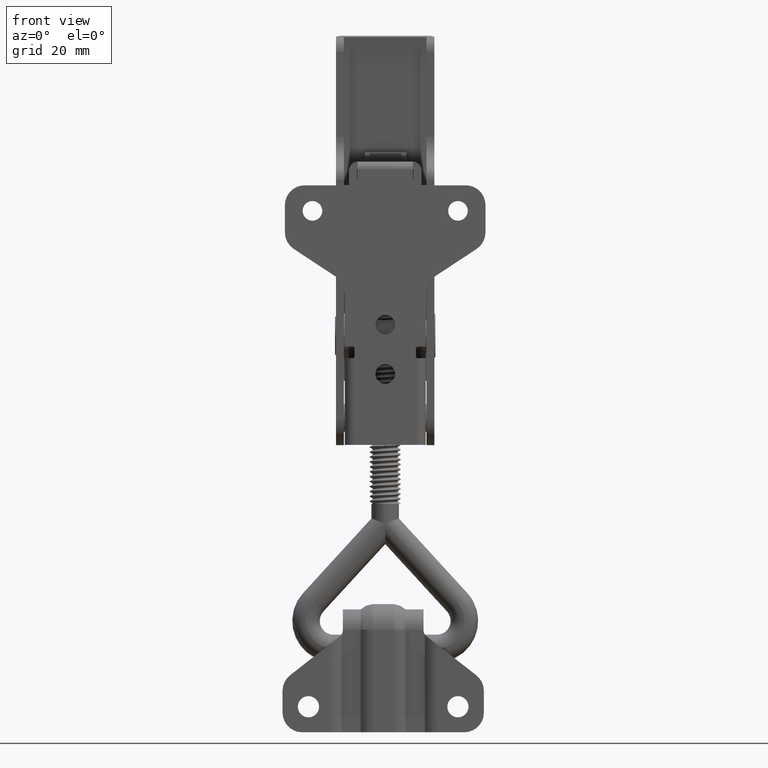
[diagram: clean part render]
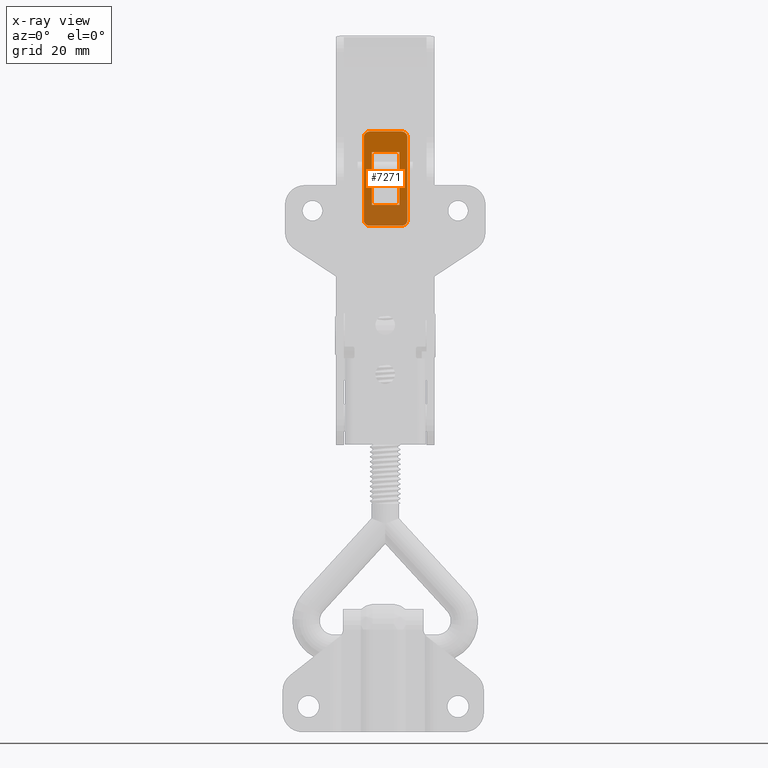
[diagram: x-ray — body ghosted, one internal face saturated and labeled with its STEP entity id]
A machine part, front view, then the same camera in x-ray: the body is ghosted and one INTERNAL B-rep face — a face not visible from any outside direction — is saturated and labeled: STEP entity #7271.
In plain terms, the highlighted planar face has unit normal (0, 0.9991, 0.0419).
Its self-contained STEP definition (entity closure, byte-faithful):
#518=PLANE('',#7791);
#860=LINE('',#33000,#1394);
#863=LINE('',#33005,#1397);
#865=LINE('',#33009,#1399);
#867=LINE('',#33012,#1401);
#868=LINE('',#33016,#1402);
#869=LINE('',#33020,#1403);
#870=LINE('',#33024,#1404);
#871=LINE('',#33028,#1405);
#1394=VECTOR('',#9060,13.5);
#1397=VECTOR('',#9065,7.);
#1399=VECTOR('',#9069,13.5);
#1401=VECTOR('',#9073,7.);
#1402=VECTOR('',#9076,8.1);
#1403=VECTOR('',#9079,21.);
#1404=VECTOR('',#9082,8.1);
#1405=VECTOR('',#9085,21.);
#1720=FACE_BOUND('',#2348,.T.);
#1937=FACE_OUTER_BOUND('',#2347,.T.);
#2347=EDGE_LOOP('',(#5926,#5927,#5928,#5929,#5930,#5931,#5932,#5933));
#2348=EDGE_LOOP('',(#5934,#5935,#5936,#5937));
#2718=CIRCLE('',#7792,1.5);
#2719=CIRCLE('',#7793,1.49999999999999);
#2720=CIRCLE('',#7794,1.49999999999999);
#2721=CIRCLE('',#7795,1.5);
#3339=VERTEX_POINT('',#32998);
#3340=VERTEX_POINT('',#32999);
#3341=VERTEX_POINT('',#33004);
#3342=VERTEX_POINT('',#33008);
#3343=VERTEX_POINT('',#33014);
#3344=VERTEX_POINT('',#33015);
#3345=VERTEX_POINT('',#33017);
#3346=VERTEX_POINT('',#33019);
#3347=VERTEX_POINT('',#33021);
#3348=VERTEX_POINT('',#33023);
#3349=VERTEX_POINT('',#33025);
#3350=VERTEX_POINT('',#33027);
#4255=EDGE_CURVE('',#3339,#3340,#860,.T.);
#4258=EDGE_CURVE('',#3341,#3339,#863,.T.);
#4260=EDGE_CURVE('',#3342,#3341,#865,.T.);
#4262=EDGE_CURVE('',#3340,#3342,#867,.T.);
#4263=EDGE_CURVE('',#3343,#3344,#868,.T.);
#4264=EDGE_CURVE('',#3345,#3343,#2718,.T.);
#4265=EDGE_CURVE('',#3346,#3345,#869,.T.);
#4266=EDGE_CURVE('',#3347,#3346,#2719,.T.);
#4267=EDGE_CURVE('',#3348,#3347,#870,.T.);
#4268=EDGE_CURVE('',#3349,#3348,#2720,.T.);
#4269=EDGE_CURVE('',#3350,#3349,#871,.T.);
#4270=EDGE_CURVE('',#3344,#3350,#2721,.T.);
#5926=ORIENTED_EDGE('',*,*,#4263,.F.);
#5927=ORIENTED_EDGE('',*,*,#4264,.F.);
#5928=ORIENTED_EDGE('',*,*,#4265,.F.);
#5929=ORIENTED_EDGE('',*,*,#4266,.F.);
#5930=ORIENTED_EDGE('',*,*,#4267,.F.);
#5931=ORIENTED_EDGE('',*,*,#4268,.F.);
#5932=ORIENTED_EDGE('',*,*,#4269,.F.);
#5933=ORIENTED_EDGE('',*,*,#4270,.F.);
#5934=ORIENTED_EDGE('',*,*,#4255,.T.);
#5935=ORIENTED_EDGE('',*,*,#4262,.T.);
#5936=ORIENTED_EDGE('',*,*,#4260,.T.);
#5937=ORIENTED_EDGE('',*,*,#4258,.T.);
#7271=ADVANCED_FACE('',(#1937,#1720),#518,.F.);
#7791=AXIS2_PLACEMENT_3D('',#33013,#9074,#9075);
#7792=AXIS2_PLACEMENT_3D('',#33018,#9077,#9078);
#7793=AXIS2_PLACEMENT_3D('',#33022,#9080,#9081);
#7794=AXIS2_PLACEMENT_3D('',#33026,#9083,#9084);
#7795=AXIS2_PLACEMENT_3D('',#33029,#9086,#9087);
#9060=DIRECTION('',(-0.999114740185495,0.0420682296284348,-7.95604088300556E-17));
#9065=DIRECTION('',(1.13948260345752E-16,8.1503257928172E-16,-1.));
#9069=DIRECTION('',(0.999114740185495,-0.0420682296284348,7.95604088300556E-17));
#9073=DIRECTION('',(-1.13948260345752E-16,-8.1503257928172E-16,1.));
#9074=DIRECTION('center_axis',(0.0420682296284348,0.999114740185495,8.19104665273755E-16));
#9075=DIRECTION('ref_axis',(-0.999114740185495,0.0420682296284351,0.));
#9076=DIRECTION('',(-1.13948260345752E-16,-8.1503257928172E-16,1.));
#9077=DIRECTION('center_axis',(0.0420682296284348,0.999114740185495,8.19104665273755E-16));
#9078=DIRECTION('ref_axis',(0.999114740185495,-0.0420682296284348,-6.77927340424307E-32));
#9079=DIRECTION('',(-0.999114740185495,0.0420682296284348,-7.95604088300557E-17));
#9080=DIRECTION('center_axis',(0.0420682296284348,0.999114740185495,8.19104665273755E-16));
#9081=DIRECTION('ref_axis',(-0.999114740185495,0.0420682296284348,-9.24446373305873E-32));
#9082=DIRECTION('',(1.13948260345752E-16,8.1503257928172E-16,-1.));
#9083=DIRECTION('center_axis',(0.0420682296284348,0.999114740185495,8.19104665273755E-16));
#9084=DIRECTION('ref_axis',(0.999114740185495,-0.0420682296284348,9.24446373305873E-32));
#9085=DIRECTION('',(0.999114740185495,-0.0420682296284348,7.95604088300557E-17));
#9086=DIRECTION('center_axis',(0.0420682296284348,0.999114740185495,8.19104665273755E-16));
#9087=DIRECTION('ref_axis',(-0.999114740185495,0.0420682296284348,6.77927340424307E-32));
#32998=CARTESIAN_POINT('',(67.6774054640751,6.35856034423145,-3.49999999999998));
#32999=CARTESIAN_POINT('',(54.1893564715709,6.92648144421612,-3.49999999999998));
#33000=CARTESIAN_POINT('',(59.2592099314959,6.71301270938889,-3.49999999999998));
#33004=CARTESIAN_POINT('',(67.6774054640751,6.35856034423225,3.50000000000002));
#33005=CARTESIAN_POINT('',(67.6774054640751,6.35856034423226,0.521039883041226));
#33008=CARTESIAN_POINT('',(54.1893564715709,6.92648144421612,3.50000000000002));
#33009=CARTESIAN_POINT('',(66.6510410381029,6.40177593561292,3.50000000000002));
#33012=CARTESIAN_POINT('',(54.1893564715709,6.92648144421613,1.89607207510647E-14));
#33013=CARTESIAN_POINT('Origin',(79.8902754698102,5.84433129809877,5.55000000000002));
#33014=CARTESIAN_POINT('',(48.8940483485878,7.14944306124683,-4.04999999999998));
#33015=CARTESIAN_POINT('',(48.8940483485878,7.14944306124682,4.05000000000002));
#33016=CARTESIAN_POINT('',(48.8940483485878,7.14944306124682,5.55000000000002));
#33017=CARTESIAN_POINT('',(50.392720458866,7.08634071680418,-5.54999999999998));
#33018=CARTESIAN_POINT('Origin',(50.392720458866,7.08634071680418,-4.04999999999998));
#33019=CARTESIAN_POINT('',(71.3741300027614,6.20290789460705,-5.54999999999998));
#33020=CARTESIAN_POINT('',(79.8902754698102,5.84433129809878,-5.54999999999998));
#33021=CARTESIAN_POINT('',(72.8728021130397,6.13980555016439,-4.04999999999998));
#33022=CARTESIAN_POINT('Origin',(71.3741300027614,6.20290789460705,-4.04999999999998));
#33023=CARTESIAN_POINT('',(72.8728021130397,6.13980555016439,4.05000000000002));
#33024=CARTESIAN_POINT('',(72.8728021130397,6.13980555016438,5.55000000000002));
#33025=CARTESIAN_POINT('',(71.3741300027614,6.20290789460704,5.55000000000002));
#33026=CARTESIAN_POINT('Origin',(71.3741300027614,6.20290789460704,4.05000000000002));
#33027=CARTESIAN_POINT('',(50.392720458866,7.08634071680417,5.55000000000002));
#33028=CARTESIAN_POINT('',(79.8902754698102,5.84433129809877,5.55000000000002));
#33029=CARTESIAN_POINT('Origin',(50.392720458866,7.08634071680417,4.05000000000002));